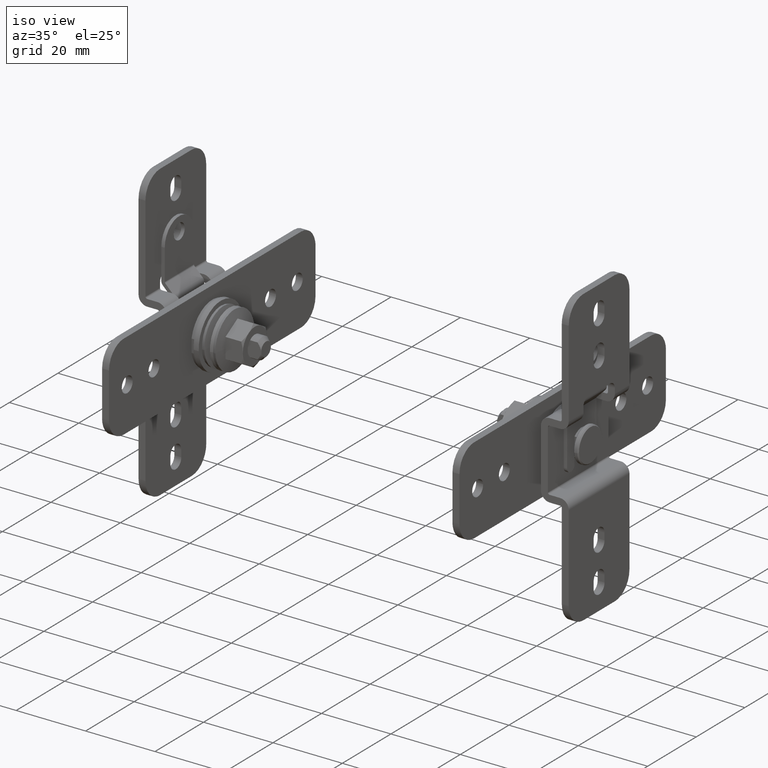
[diagram: clean part render]
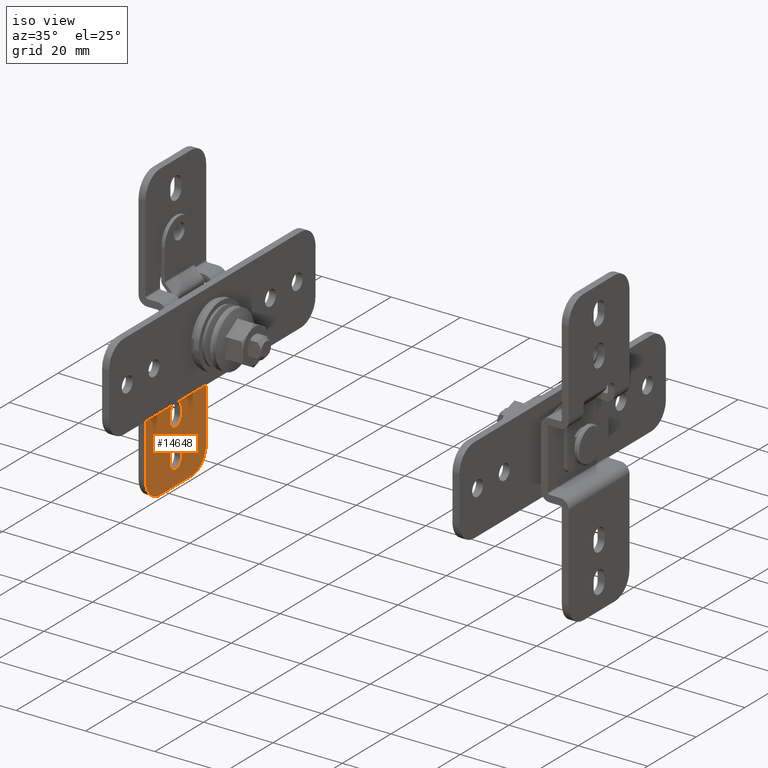
[diagram: same view with one face highlighted and labeled with its STEP entity id]
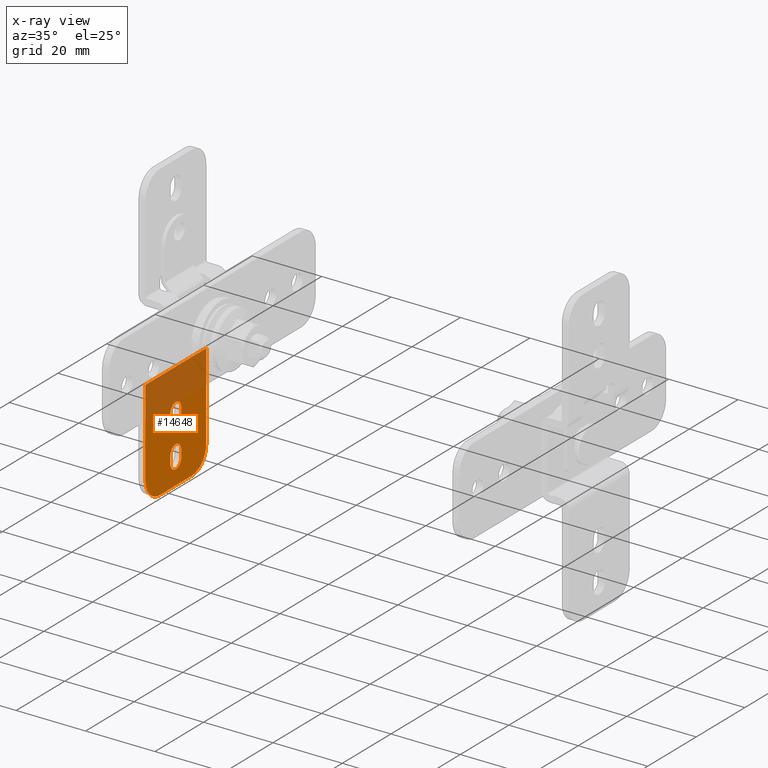
[diagram: x-ray of the same camera — body ghosted, the highlighted face saturated]
A machine part, iso view. The second image highlights one B-rep face of the part: STEP entity #14648.
The next image is the same camera in x-ray: the body ghosted, the highlighted face saturated — about 34% of this face is hidden behind the body in this view.
In plain terms, the highlighted face is a freeform B-spline surface patch.
Its self-contained STEP definition (entity closure, byte-faithful):
#13780=CARTESIAN_POINT('',(2.0,-2.249999999999775,-24.999999999967901));
#13781=VERTEX_POINT('',#13780);
#13787=CARTESIAN_POINT('',(2.0,2.250000000000230,-24.999999999967901));
#13788=VERTEX_POINT('',#13787);
#13789=CARTESIAN_POINT('',(2.0,2.250000000000230,-24.999999999967901));
#13790=CARTESIAN_POINT('',(1.999999999999999,2.250204559764964,-25.257724553774018));
#13791=CARTESIAN_POINT('',(1.999999999999999,2.186028365876933,-25.625731276914649));
#13792=CARTESIAN_POINT('',(2.000000000000004,1.969091454185887,-26.115087384132490));
#13793=CARTESIAN_POINT('',(1.999999999999991,1.717649011010000,-26.481645127637599));
#13794=CARTESIAN_POINT('',(2.000000000000005,1.364823838524260,-26.809367309315110));
#13795=CARTESIAN_POINT('',(1.999999999999997,0.904731426109443,-27.085200633784488));
#13796=CARTESIAN_POINT('',(2.000000000000003,0.370566135250795,-27.247261131815620));
#13797=CARTESIAN_POINT('',(1.999999999999992,-0.185658794902103,-27.260812624339412));
#13798=CARTESIAN_POINT('',(2.000000000000027,-0.729899724271831,-27.152649701564862));
#13799=CARTESIAN_POINT('',(1.999999999999953,-1.251394842201230,-26.906023590310632));
#13800=CARTESIAN_POINT('',(2.000000000000017,-1.752420118023909,-26.463003458071960));
#13801=CARTESIAN_POINT('',(1.999999999999988,-2.143695872361940,-25.828174954128809));
#13802=CARTESIAN_POINT('',(2.000000000000005,-2.250282848648232,-25.294532747194481));
#13803=CARTESIAN_POINT('',(2.0,-2.249999999999775,-24.999999999967901));
#13804=B_SPLINE_CURVE_WITH_KNOTS('',3,(#13789,#13790,#13791,#13792,#13793,#13794,#13795,#13796,#13797,#13798,#13799,#13800,#13801,#13802,#13803),.UNSPECIFIED.,.F.,.U.,(4,1,1,1,1,1,1,1,1,1,1,1,4),(0.000000196250488,0.773093832293525,1.104458431367810,1.601516846082776,2.098559095873056,2.540348542934178,3.203102362539872,3.755214905550276,4.197024913644165,4.859749523920543,5.467256219437751,6.185215054327749,7.068760850378434),.UNSPECIFIED.);
#13805=EDGE_CURVE('',#13788,#13781,#13804,.T.);
#13827=CARTESIAN_POINT('',(2.0,-2.249999999999775,-22.999999999967901));
#13828=VERTEX_POINT('',#13827);
#13834=CARTESIAN_POINT('',(2.0,-2.249999999999775,-22.999999999967901));
#13835=CARTESIAN_POINT('',(2.0,-2.249999999999775,-24.999999999967901));
#13836=QUASI_UNIFORM_CURVE('',1,(#13834,#13835),.UNSPECIFIED.,.F.,.U.);
#13837=EDGE_CURVE('',#13828,#13781,#13836,.T.);
#13881=CARTESIAN_POINT('',(2.0,2.250000000000230,-22.999999999967901));
#13882=VERTEX_POINT('',#13881);
#13888=CARTESIAN_POINT('',(2.0,-2.249999999999775,-22.999999999967901));
#13889=CARTESIAN_POINT('',(2.0,-2.250089964971541,-22.779095022680671));
#13890=CARTESIAN_POINT('',(2.0,-2.195332891774239,-22.411014047129541));
#13891=CARTESIAN_POINT('',(2.0,-1.990033207159621,-21.915453625059889));
#13892=CARTESIAN_POINT('',(1.999999999999999,-1.675809059169700,-21.457177026741700));
#13893=CARTESIAN_POINT('',(2.0,-1.219298335889240,-21.073138326963981));
#13894=CARTESIAN_POINT('',(2.000000000000004,-0.591894227345743,-20.794978902386799));
#13895=CARTESIAN_POINT('',(1.999999999999988,0.001280637318955,-20.721835147975380));
#13896=CARTESIAN_POINT('',(2.000000000000029,0.660058791005365,-20.819506659598002));
#13897=CARTESIAN_POINT('',(1.999999999999947,1.155274905225932,-21.039017306872768));
#13898=CARTESIAN_POINT('',(2.000000000000034,1.573532958306345,-21.373964391913798));
#13899=CARTESIAN_POINT('',(1.999999999999989,1.863513004597363,-21.710094250725611));
#13900=CARTESIAN_POINT('',(1.999999999999968,2.158325283042089,-22.245506722933150));
#13901=CARTESIAN_POINT('',(2.000000000000072,2.250291615421828,-22.705437667552079));
#13902=CARTESIAN_POINT('',(2.0,2.250000000000230,-22.999999999967901));
#13903=B_SPLINE_CURVE_WITH_KNOTS('',3,(#13888,#13889,#13890,#13891,#13892,#13893,#13894,#13895,#13896,#13897,#13898,#13899,#13900,#13901,#13902),.UNSPECIFIED.,.F.,.U.,(4,1,1,1,1,1,1,1,1,1,1,1,4),(0.000000196249728,0.662697180072599,1.104458431367141,1.601516846082094,2.319470932891060,2.871706931908813,3.644792945757435,4.086618096975423,4.859749523920235,5.246346393027379,5.688152584414910,6.185215054327592,7.068760850378453),.UNSPECIFIED.);
#13904=EDGE_CURVE('',#13828,#13882,#13903,.T.);
#13921=CARTESIAN_POINT('',(2.0,2.250000000000230,-24.999999999967901));
#13922=CARTESIAN_POINT('',(2.0,2.250000000000230,-22.999999999967901));
#13923=QUASI_UNIFORM_CURVE('',1,(#13921,#13922),.UNSPECIFIED.,.F.,.U.);
#13924=EDGE_CURVE('',#13788,#13882,#13923,.T.);
#13970=CARTESIAN_POINT('',(2.0,-2.249999999999775,-35.999999999967912));
#13971=VERTEX_POINT('',#13970);
#13977=CARTESIAN_POINT('',(2.0,2.250000000000230,-35.999999999967912));
#13978=VERTEX_POINT('',#13977);
#13979=CARTESIAN_POINT('',(2.0,2.250000000000230,-35.999999999967912));
#13980=CARTESIAN_POINT('',(2.0,2.250105377467221,-36.220907348167813));
#13981=CARTESIAN_POINT('',(2.000000000000001,2.195319197047684,-36.588983521025618));
#13982=CARTESIAN_POINT('',(1.999999999999997,1.990046941263592,-37.084559149820542));
#13983=CARTESIAN_POINT('',(2.000000000000007,1.696705421117849,-37.512194468232643));
#13984=CARTESIAN_POINT('',(1.999999999999990,1.223609628729170,-37.930680560713583));
#13985=CARTESIAN_POINT('',(2.000000000000003,0.557590778424415,-38.226005883872460));
#13986=CARTESIAN_POINT('',(1.999999999999997,-0.187651947777608,-38.280915478156601));
#13987=CARTESIAN_POINT('',(2.000000000000008,-0.801323697210843,-38.127062780125129));
#13988=CARTESIAN_POINT('',(1.999999999999979,-1.274387062036258,-37.874143186603163));
#13989=CARTESIAN_POINT('',(2.000000000000004,-1.699642556903442,-37.516505154215807));
#13990=CARTESIAN_POINT('',(2.000000000000002,-2.016029885772867,-37.055310360624873));
#13991=CARTESIAN_POINT('',(1.999999999999996,-2.209100915608934,-36.515367795311278));
#13992=CARTESIAN_POINT('',(2.000000000000002,-2.250042303238959,-36.184063931017192));
#13993=CARTESIAN_POINT('',(2.0,-2.249999999999775,-35.999999999967912));
#13994=B_SPLINE_CURVE_WITH_KNOTS('',3,(#13979,#13980,#13981,#13982,#13983,#13984,#13985,#13986,#13987,#13988,#13989,#13990,#13991,#13992,#13993),.UNSPECIFIED.,.F.,.U.,(4,1,1,1,1,1,1,1,1,1,1,1,4),(0.000000196257570,0.662697180079624,1.104458431373745,1.601516846088065,2.208997066073460,2.982171445038976,3.755214905552962,4.417969645474773,4.859749523921957,5.356798497878339,6.074745185794483,6.516561075902612,7.068760850378433),.UNSPECIFIED.);
#13995=EDGE_CURVE('',#13978,#13971,#13994,.T.);
#14017=CARTESIAN_POINT('',(2.0,-2.249999999999775,-33.999999999967912));
#14018=VERTEX_POINT('',#14017);
#14024=CARTESIAN_POINT('',(2.0,-2.249999999999775,-33.999999999967912));
#14025=CARTESIAN_POINT('',(2.0,-2.249999999999775,-35.999999999967912));
#14026=QUASI_UNIFORM_CURVE('',1,(#14024,#14025),.UNSPECIFIED.,.F.,.U.);
#14027=EDGE_CURVE('',#14018,#13971,#14026,.T.);
#14072=CARTESIAN_POINT('',(2.0,2.250000000000230,-33.999999999967912));
#14073=VERTEX_POINT('',#14072);
#14079=CARTESIAN_POINT('',(2.0,-2.249999999999775,-33.999999999967912));
#14080=CARTESIAN_POINT('',(2.000000000000001,-2.250105461820708,-33.779092033470832));
#14081=CARTESIAN_POINT('',(1.999999999999997,-2.195319371607742,-33.411016495130752));
#14082=CARTESIAN_POINT('',(2.000000000000001,-1.990050591725347,-32.915435979463290));
#14083=CARTESIAN_POINT('',(1.999999999999997,-1.717645755025706,-32.518356684280107));
#14084=CARTESIAN_POINT('',(2.000000000000001,-1.364816377044712,-32.190653133109542));
#14085=CARTESIAN_POINT('',(2.0,-0.873036047733927,-31.895686553318750));
#14086=CARTESIAN_POINT('',(1.999999999999999,-0.260936222943799,-31.726335432787721));
#14087=CARTESIAN_POINT('',(2.000000000000003,0.445349107367626,-31.761051965152419));
#14088=CARTESIAN_POINT('',(1.999999999999992,0.988444970762794,-31.955452128320552));
#14089=CARTESIAN_POINT('',(2.000000000000017,1.406581216650626,-32.227544492204707));
#14090=CARTESIAN_POINT('',(1.999999999999989,1.714718015627494,-32.520892795433888));
#14091=CARTESIAN_POINT('',(2.000000000000006,1.959675282818344,-32.868731450717803));
#14092=CARTESIAN_POINT('',(1.999999999999996,2.182814527939249,-33.355861869159767));
#14093=CARTESIAN_POINT('',(2.000000000000001,2.250207978246226,-33.742270827519327));
#14094=CARTESIAN_POINT('',(2.0,2.250000000000230,-33.999999999967912));
#14095=B_SPLINE_CURVE_WITH_KNOTS('',3,(#14079,#14080,#14081,#14082,#14083,#14084,#14085,#14086,#14087,#14088,#14089,#14090,#14091,#14092,#14093,#14094),.UNSPECIFIED.,.F.,.U.,(4,1,1,1,1,1,1,1,1,1,1,1,1,4),(0.000000196260515,0.662697180081893,1.104458431375454,1.601516846089600,2.098559095879257,2.540348542939666,3.313537489161228,3.976131615737712,4.638842249684325,5.025449052654200,5.467256219438728,5.909071856491551,6.295655813486841,7.068760850378443),.UNSPECIFIED.);
#14096=EDGE_CURVE('',#14018,#14073,#14095,.T.);
#14113=CARTESIAN_POINT('',(2.0,2.250000000000230,-35.999999999967912));
#14114=CARTESIAN_POINT('',(2.0,2.250000000000230,-33.999999999967912));
#14115=QUASI_UNIFORM_CURVE('',1,(#14113,#14114),.UNSPECIFIED.,.F.,.U.);
#14116=EDGE_CURVE('',#13978,#14073,#14115,.T.);
#14512=CARTESIAN_POINT('',(2.0,-12.499999999999719,-11.500000000000000));
#14513=VERTEX_POINT('',#14512);
#14527=CARTESIAN_POINT('',(2.0,12.499999999999719,-11.500000000000000));
#14528=VERTEX_POINT('',#14527);
#14529=CARTESIAN_POINT('',(2.0,12.499999999999719,-11.500000000000000));
#14530=CARTESIAN_POINT('',(2.0,-12.499999999999719,-11.500000000000000));
#14531=QUASI_UNIFORM_CURVE('',1,(#14529,#14530),.UNSPECIFIED.,.F.,.U.);
#14532=EDGE_CURVE('',#14528,#14513,#14531,.T.);
#14565=CARTESIAN_POINT('',(2.0,6.499999999999730,-42.500000000000000));
#14566=VERTEX_POINT('',#14565);
#14572=CARTESIAN_POINT('',(2.0,-6.499999999999730,-42.500000000000000));
#14573=VERTEX_POINT('',#14572);
#14574=CARTESIAN_POINT('',(2.0,6.499999999999730,-42.500000000000000));
#14575=CARTESIAN_POINT('',(2.0,-6.499999999999730,-42.500000000000000));
#14576=QUASI_UNIFORM_CURVE('',1,(#14574,#14575),.UNSPECIFIED.,.F.,.U.);
#14577=EDGE_CURVE('',#14566,#14573,#14576,.T.);
#14587=CARTESIAN_POINT('',(2.0,-13.748749951544889,-9.951550060084010));
#14588=CARTESIAN_POINT('',(2.0,-13.748749951544889,-44.048450771400773));
#14589=CARTESIAN_POINT('',(2.0,13.748750622097139,-9.951550060084010));
#14590=CARTESIAN_POINT('',(2.0,13.748750622097139,-44.048450771400773));
#14591=B_SPLINE_SURFACE_WITH_KNOTS('',1,1,((#14587,#14589),(#14588,#14590)),.UNSPECIFIED.,.F.,.F.,.U.,(2,2),(2,2),(0.0,34.096900711316763),(0.0,27.497500573642021),.UNSPECIFIED.);
#14592=ORIENTED_EDGE('',*,*,#14577,.F.);
#14593=CARTESIAN_POINT('',(2.0,12.499999999999760,-36.500000000000000));
#14594=VERTEX_POINT('',#14593);
#14595=CARTESIAN_POINT('',(2.0,6.499999999999730,-42.499999999999993));
#14596=CARTESIAN_POINT('',(2.000000000000000,12.499999999999728,-42.500000000000000));
#14597=CARTESIAN_POINT('',(2.0,12.499999999999730,-36.500000000000000));
#14605=(BOUNDED_CURVE()B_SPLINE_CURVE(2,(#14595,#14596,#14597),.UNSPECIFIED.,.F.,.U.)CURVE()GEOMETRIC_REPRESENTATION_ITEM()QUASI_UNIFORM_CURVE()RATIONAL_B_SPLINE_CURVE((1.0,0.707106781186548,1.0))REPRESENTATION_ITEM(''));
#14606=EDGE_CURVE('',#14566,#14594,#14605,.T.);
#14607=ORIENTED_EDGE('',*,*,#14606,.T.);
#14608=CARTESIAN_POINT('',(2.0,12.499999999999760,-36.500000000000000));
#14609=CARTESIAN_POINT('',(2.0,12.499999999999719,-11.500000000000000));
#14610=QUASI_UNIFORM_CURVE('',1,(#14608,#14609),.UNSPECIFIED.,.F.,.U.);
#14611=EDGE_CURVE('',#14594,#14528,#14610,.T.);
#14612=ORIENTED_EDGE('',*,*,#14611,.T.);
#14613=ORIENTED_EDGE('',*,*,#14532,.T.);
#14614=CARTESIAN_POINT('',(2.0,-12.499999999999760,-36.500000000000000));
#14615=VERTEX_POINT('',#14614);
#14616=CARTESIAN_POINT('',(2.0,-12.499999999999760,-36.500000000000000));
#14617=CARTESIAN_POINT('',(2.0,-12.499999999999719,-11.500000000000000));
#14618=QUASI_UNIFORM_CURVE('',1,(#14616,#14617),.UNSPECIFIED.,.F.,.U.);
#14619=EDGE_CURVE('',#14615,#14513,#14618,.T.);
#14620=ORIENTED_EDGE('',*,*,#14619,.F.);
#14621=CARTESIAN_POINT('',(2.0,-12.499999999999771,-36.500000000000000));
#14622=CARTESIAN_POINT('',(2.000000000000000,-12.499999999999771,-42.500000000000000));
#14623=CARTESIAN_POINT('',(2.0,-6.499999999999770,-42.499999999999993));
#14631=(BOUNDED_CURVE()B_SPLINE_CURVE(2,(#14621,#14622,#14623),.UNSPECIFIED.,.F.,.U.)CURVE()GEOMETRIC_REPRESENTATION_ITEM()QUASI_UNIFORM_CURVE()RATIONAL_B_SPLINE_CURVE((1.0,0.707106781186548,1.0))REPRESENTATION_ITEM(''));
#14632=EDGE_CURVE('',#14615,#14573,#14631,.T.);
#14633=ORIENTED_EDGE('',*,*,#14632,.T.);
#14634=EDGE_LOOP('',(#14592,#14607,#14612,#14613,#14620,#14633));
#14635=FACE_OUTER_BOUND('',#14634,.T.);
#14636=ORIENTED_EDGE('',*,*,#14096,.T.);
#14637=ORIENTED_EDGE('',*,*,#14116,.F.);
#14638=ORIENTED_EDGE('',*,*,#13995,.T.);
#14639=ORIENTED_EDGE('',*,*,#14027,.F.);
#14640=EDGE_LOOP('',(#14636,#14637,#14638,#14639));
#14641=FACE_BOUND('',#14640,.T.);
#14642=ORIENTED_EDGE('',*,*,#13904,.T.);
#14643=ORIENTED_EDGE('',*,*,#13924,.F.);
#14644=ORIENTED_EDGE('',*,*,#13805,.T.);
#14645=ORIENTED_EDGE('',*,*,#13837,.F.);
#14646=EDGE_LOOP('',(#14642,#14643,#14644,#14645));
#14647=FACE_BOUND('',#14646,.T.);
#14648=ADVANCED_FACE('',(#14635,#14641,#14647),#14591,.T.);